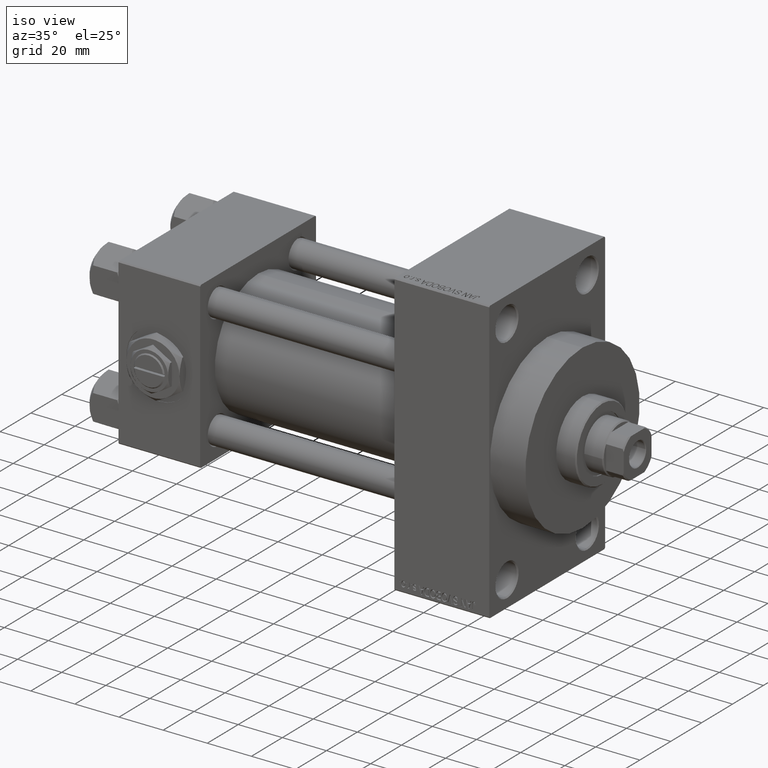
[diagram: clean part render]
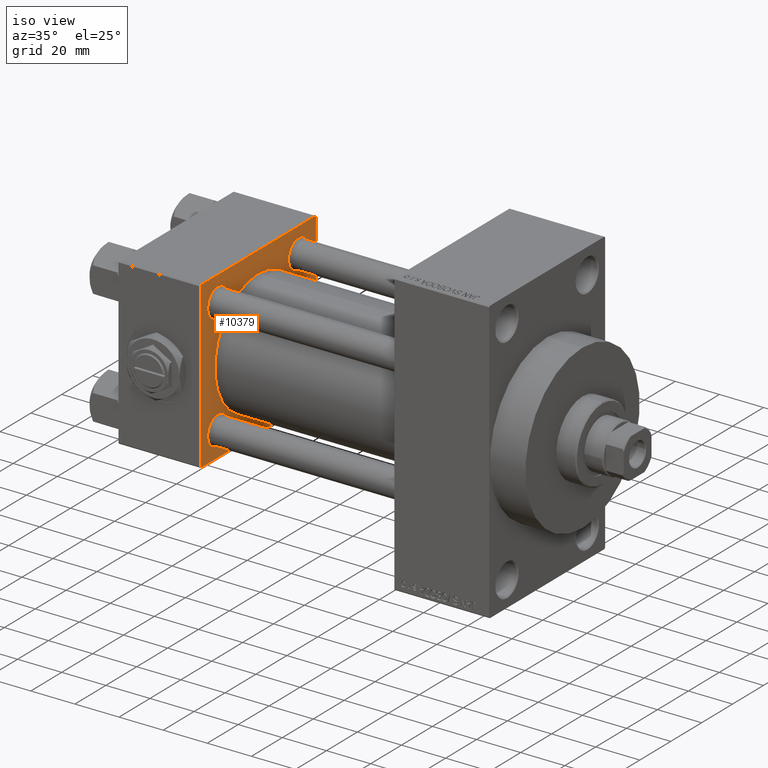
[diagram: same view with one face highlighted and labeled with its STEP entity id]
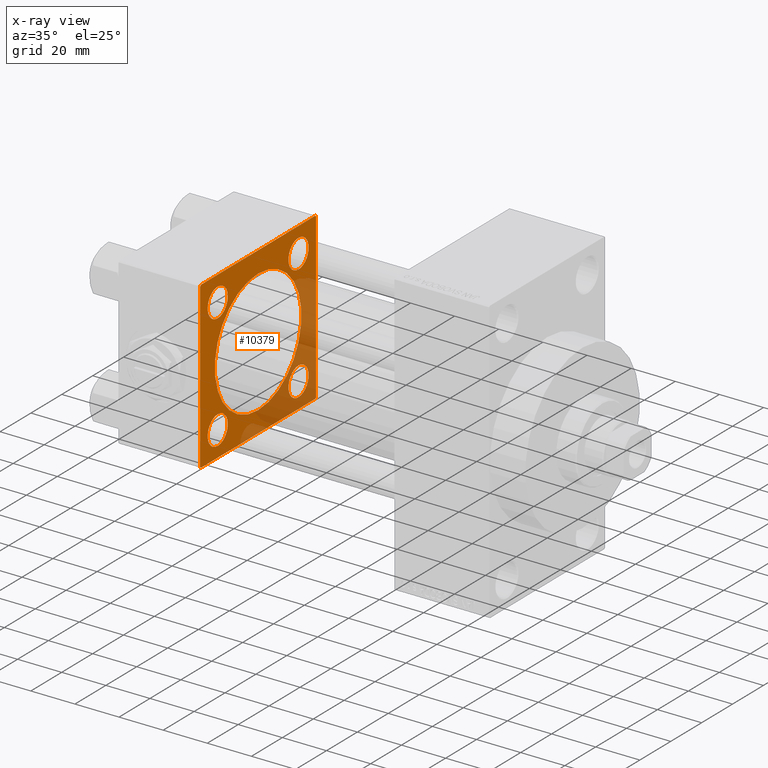
[diagram: x-ray of the same camera — body ghosted, the highlighted face saturated]
A machine part, iso view. The second image highlights one B-rep face of the part: STEP entity #10379.
The next image is the same camera in x-ray: the body ghosted, the highlighted face saturated — about 32% of this face is hidden behind the body in this view.
In plain terms, the highlighted planar face has unit normal (-1, 0, 0).
Its self-contained STEP definition (entity closure, byte-faithful):
#137 = DIRECTION ( 'NONE',  ( -1.000000000000000000, 0.000000000000000000, -0.000000000000000000 ) ) ;
#543 = DIRECTION ( 'NONE',  ( 0.000000000000000000, -1.000000000000000000, -9.251858538542971581E-17 ) ) ;
#570 = VERTEX_POINT ( 'NONE', #28455 ) ;
#608 = CIRCLE ( 'NONE', #2968, 6.499999999999981348 ) ;
#1185 = EDGE_CURVE ( 'NONE', #9830, #48133, #28582, .T. ) ;
#1370 = FACE_OUTER_BOUND ( 'NONE', #39601, .T. ) ;
#2017 = CIRCLE ( 'NONE', #29527, 28.00000000000000000 ) ;
#2146 = CARTESIAN_POINT ( 'NONE',  ( 37.00000000000000000, -37.00000000000002132, -37.50000000000000711 ) ) ;
#2225 = CARTESIAN_POINT ( 'NONE',  ( 37.00000000000000000, -26.14999999999999147, 26.15000000000000924 ) ) ;
#2282 = DIRECTION ( 'NONE',  ( 0.000000000000000000, -0.7071067811865474617, 0.7071067811865474617 ) ) ;
#2424 = ORIENTED_EDGE ( 'NONE', *, *, #24949, .T. ) ;
#2804 = VERTEX_POINT ( 'NONE', #42460 ) ;
#2968 = AXIS2_PLACEMENT_3D ( 'NONE', #6586, #21090, #36600 ) ;
#3149 = EDGE_CURVE ( 'NONE', #33008, #14816, #7200, .T. ) ;
#3944 = EDGE_CURVE ( 'NONE', #2804, #47887, #23795, .T. ) ;
#4572 = EDGE_LOOP ( 'NONE', ( #24456, #9421 ) ) ;
#5194 = CARTESIAN_POINT ( 'NONE',  ( 37.00000000000000000, -37.50000000000000711, 36.99999999999999289 ) ) ;
#5547 = FACE_BOUND ( 'NONE', #4572, .T. ) ;
#6518 = VERTEX_POINT ( 'NONE', #33891 ) ;
#6586 = CARTESIAN_POINT ( 'NONE',  ( 37.00000000000000000, -26.14999999999999147, 26.15000000000000924 ) ) ;
#6688 = CARTESIAN_POINT ( 'NONE',  ( 37.00000000000000000, 37.49999999999999289, -37.50000000000000000 ) ) ;
#6998 = DIRECTION ( 'NONE',  ( -1.000000000000000000, 0.000000000000000000, -0.000000000000000000 ) ) ;
#7200 = LINE ( 'NONE', #18757, #16810 ) ;
#7297 = ORIENTED_EDGE ( 'NONE', *, *, #1185, .F. ) ;
#7771 = VERTEX_POINT ( 'NONE', #44184 ) ;
#7860 = EDGE_CURVE ( 'NONE', #47887, #2804, #38065, .T. ) ;
#8405 = CIRCLE ( 'NONE', #36680, 6.500000000000037303 ) ;
#8963 = DIRECTION ( 'NONE',  ( 0.000000000000000000, 0.000000000000000000, 1.000000000000000000 ) ) ;
#9233 = ORIENTED_EDGE ( 'NONE', *, *, #3944, .T. ) ;
#9268 = EDGE_CURVE ( 'NONE', #20508, #22989, #42785, .T. ) ;
#9421 = ORIENTED_EDGE ( 'NONE', *, *, #11503, .F. ) ;
#9511 = EDGE_CURVE ( 'NONE', #9830, #28955, #18739, .T. ) ;
#9774 = DIRECTION ( 'NONE',  ( -1.000000000000000000, 0.000000000000000000, -0.000000000000000000 ) ) ;
#9811 = VECTOR ( 'NONE', #14810, 1000.000000000000114 ) ;
#9830 = VERTEX_POINT ( 'NONE', #12254 ) ;
#9895 = LINE ( 'NONE', #24419, #42022 ) ;
#9913 = CARTESIAN_POINT ( 'NONE',  ( 37.00000000000000000, 26.14999999999999858, 26.15000000000000213 ) ) ;
#10106 = EDGE_LOOP ( 'NONE', ( #31237, #36867 ) ) ;
#10379 = ADVANCED_FACE ( 'NONE', ( #24010, #35074, #36041, #43170, #5547, #1370 ), #16384, .F. ) ;
#10937 = VECTOR ( 'NONE', #543, 1000.000000000000000 ) ;
#11503 = EDGE_CURVE ( 'NONE', #17267, #570, #2017, .T. ) ;
#11692 = CARTESIAN_POINT ( 'NONE',  ( 37.00000000000000000, 26.14999999999999858, -19.64999999999997371 ) ) ;
#12254 = CARTESIAN_POINT ( 'NONE',  ( 37.00000000000000000, 36.99999999999997868, -37.50000000000000000 ) ) ;
#12423 = DIRECTION ( 'NONE',  ( 1.000000000000000000, -0.000000000000000000, 0.000000000000000000 ) ) ;
#12534 = CARTESIAN_POINT ( 'NONE',  ( 37.00000000000000000, -26.14999999999999147, 19.65000000000002700 ) ) ;
#12772 = ORIENTED_EDGE ( 'NONE', *, *, #3149, .T. ) ;
#13494 = EDGE_CURVE ( 'NONE', #7771, #28955, #28122, .T. ) ;
#13579 = ORIENTED_EDGE ( 'NONE', *, *, #7860, .T. ) ;
#14810 = DIRECTION ( 'NONE',  ( -0.000000000000000000, 0.7071067811865474617, 0.7071067811865474617 ) ) ;
#14816 = VERTEX_POINT ( 'NONE', #40795 ) ;
#14903 = CARTESIAN_POINT ( 'NONE',  ( 37.00000000000000000, -26.14999999999999147, -26.15000000000000924 ) ) ;
#15921 = CARTESIAN_POINT ( 'NONE',  ( 37.00000000000000711, -2.602085213965210642E-15, 0.000000000000000000 ) ) ;
#16025 = AXIS2_PLACEMENT_3D ( 'NONE', #34562, #42660, #8963 ) ;
#16384 = PLANE ( 'NONE',  #20863 ) ;
#16499 = CIRCLE ( 'NONE', #41640, 6.500000000000030198 ) ;
#16657 = EDGE_CURVE ( 'NONE', #21242, #33008, #35659, .T. ) ;
#16810 = VECTOR ( 'NONE', #18516, 1000.000000000000000 ) ;
#17267 = VERTEX_POINT ( 'NONE', #21833 ) ;
#17537 = LINE ( 'NONE', #47064, #34566 ) ;
#17830 = EDGE_CURVE ( 'NONE', #22989, #20508, #8405, .T. ) ;
#18071 = CARTESIAN_POINT ( 'NONE',  ( 37.00000000000000000, 26.14999999999999858, 26.15000000000000213 ) ) ;
#18126 = CIRCLE ( 'NONE', #40873, 6.500000000000030198 ) ;
#18516 = DIRECTION ( 'NONE',  ( 0.000000000000000000, 9.251858538542971581E-17, -1.000000000000000000 ) ) ;
#18739 = LINE ( 'NONE', #33978, #9811 ) ;
#18757 = CARTESIAN_POINT ( 'NONE',  ( 37.00000000000000000, -37.50000000000000711, 37.49999999999999289 ) ) ;
#18829 = DIRECTION ( 'NONE',  ( 0.000000000000000000, 0.000000000000000000, 1.000000000000000000 ) ) ;
#19371 = VECTOR ( 'NONE', #43352, 1000.000000000000000 ) ;
#19549 = ORIENTED_EDGE ( 'NONE', *, *, #9511, .T. ) ;
#19572 = EDGE_LOOP ( 'NONE', ( #42801, #40383 ) ) ;
#19711 = EDGE_CURVE ( 'NONE', #26812, #29090, #608, .T. ) ;
#19962 = CARTESIAN_POINT ( 'NONE',  ( 37.00000000000000000, 37.49999999999999289, 37.50000000000000000 ) ) ;
#20254 = CARTESIAN_POINT ( 'NONE',  ( 37.00000000000000000, -37.00000000000000711, 37.49999999999999289 ) ) ;
#20312 = DIRECTION ( 'NONE',  ( -1.000000000000000000, 0.000000000000000000, -0.000000000000000000 ) ) ;
#20485 = CARTESIAN_POINT ( 'NONE',  ( 37.00000000000000000, 37.49999999999999289, 37.50000000000000000 ) ) ;
#20508 = VERTEX_POINT ( 'NONE', #41797 ) ;
#20863 = AXIS2_PLACEMENT_3D ( 'NONE', #47111, #42937, #35552 ) ;
#21090 = DIRECTION ( 'NONE',  ( -1.000000000000000000, 0.000000000000000000, -0.000000000000000000 ) ) ;
#21242 = VERTEX_POINT ( 'NONE', #20254 ) ;
#21582 = AXIS2_PLACEMENT_3D ( 'NONE', #18071, #6998, #22234 ) ;
#21688 = VERTEX_POINT ( 'NONE', #22382 ) ;
#21833 = CARTESIAN_POINT ( 'NONE',  ( 37.00000000000000711, 8.269258236473784371E-16, -28.00000000000000000 ) ) ;
#21865 = CARTESIAN_POINT ( 'NONE',  ( 37.00000000000000000, -26.14999999999999147, -19.65000000000003411 ) ) ;
#22234 = DIRECTION ( 'NONE',  ( 0.000000000000000000, 0.000000000000000000, 1.000000000000000000 ) ) ;
#22264 = ORIENTED_EDGE ( 'NONE', *, *, #16657, .T. ) ;
#22272 = EDGE_CURVE ( 'NONE', #21688, #21242, #27112, .T. ) ;
#22382 = CARTESIAN_POINT ( 'NONE',  ( 37.00000000000000000, 36.99999999999999289, 37.50000000000000000 ) ) ;
#22989 = VERTEX_POINT ( 'NONE', #47813 ) ;
#23036 = VECTOR ( 'NONE', #43831, 1000.000000000000000 ) ;
#23795 = CIRCLE ( 'NONE', #26165, 6.499999999999974243 ) ;
#24010 = FACE_BOUND ( 'NONE', #43955, .T. ) ;
#24419 = CARTESIAN_POINT ( 'NONE',  ( 37.00000000000000000, -37.00000000000002132, -37.50000000000000711 ) ) ;
#24456 = ORIENTED_EDGE ( 'NONE', *, *, #24664, .F. ) ;
#24664 = EDGE_CURVE ( 'NONE', #570, #17267, #38496, .T. ) ;
#24788 = DIRECTION ( 'NONE',  ( 0.000000000000000000, 0.000000000000000000, 1.000000000000000000 ) ) ;
#24923 = DIRECTION ( 'NONE',  ( 0.000000000000000000, 0.000000000000000000, 1.000000000000000000 ) ) ;
#24949 = EDGE_CURVE ( 'NONE', #7771, #21688, #17537, .T. ) ;
#25873 = ORIENTED_EDGE ( 'NONE', *, *, #13494, .F. ) ;
#26165 = AXIS2_PLACEMENT_3D ( 'NONE', #14903, #137, #18829 ) ;
#26812 = VERTEX_POINT ( 'NONE', #35854 ) ;
#27112 = LINE ( 'NONE', #19962, #10937 ) ;
#27459 = CARTESIAN_POINT ( 'NONE',  ( 37.00000000000000000, 26.14999999999999858, -26.15000000000000213 ) ) ;
#28122 = LINE ( 'NONE', #20485, #19371 ) ;
#28455 = CARTESIAN_POINT ( 'NONE',  ( 37.00000000000000711, -2.602085213965210642E-15, 28.00000000000000000 ) ) ;
#28582 = LINE ( 'NONE', #6688, #23036 ) ;
#28827 = CARTESIAN_POINT ( 'NONE',  ( 37.00000000000000000, 37.49999999999999289, -36.99999999999998579 ) ) ;
#28955 = VERTEX_POINT ( 'NONE', #28827 ) ;
#29090 = VERTEX_POINT ( 'NONE', #12534 ) ;
#29472 = ORIENTED_EDGE ( 'NONE', *, *, #19711, .T. ) ;
#29527 = AXIS2_PLACEMENT_3D ( 'NONE', #30877, #12423, #42196 ) ;
#30681 = CIRCLE ( 'NONE', #39319, 6.499999999999981348 ) ;
#30877 = CARTESIAN_POINT ( 'NONE',  ( 37.00000000000000711, -2.602085213965210642E-15, 0.000000000000000000 ) ) ;
#30927 = DIRECTION ( 'NONE',  ( 0.000000000000000000, 0.000000000000000000, 1.000000000000000000 ) ) ;
#31237 = ORIENTED_EDGE ( 'NONE', *, *, #9268, .T. ) ;
#31259 = EDGE_CURVE ( 'NONE', #44756, #6518, #16499, .T. ) ;
#31439 = AXIS2_PLACEMENT_3D ( 'NONE', #15921, #42003, #30927 ) ;
#32235 = EDGE_CURVE ( 'NONE', #29090, #26812, #30681, .T. ) ;
#32300 = DIRECTION ( 'NONE',  ( -1.000000000000000000, 0.000000000000000000, -0.000000000000000000 ) ) ;
#32346 = ORIENTED_EDGE ( 'NONE', *, *, #22272, .T. ) ;
#32397 = EDGE_CURVE ( 'NONE', #6518, #44756, #18126, .T. ) ;
#32703 = CARTESIAN_POINT ( 'NONE',  ( 37.00000000000000000, -37.50000000000000711, 36.99999999999999289 ) ) ;
#33008 = VERTEX_POINT ( 'NONE', #5194 ) ;
#33891 = CARTESIAN_POINT ( 'NONE',  ( 37.00000000000000000, 26.14999999999999858, -32.65000000000003411 ) ) ;
#33978 = CARTESIAN_POINT ( 'NONE',  ( 37.00000000000000000, 37.49999999999999289, -36.99999999999998579 ) ) ;
#34562 = CARTESIAN_POINT ( 'NONE',  ( 37.00000000000000000, -26.14999999999999147, -26.15000000000000924 ) ) ;
#34566 = VECTOR ( 'NONE', #2282, 1000.000000000000114 ) ;
#35074 = FACE_BOUND ( 'NONE', #19572, .T. ) ;
#35199 = DIRECTION ( 'NONE',  ( -1.000000000000000000, 0.000000000000000000, -0.000000000000000000 ) ) ;
#35552 = DIRECTION ( 'NONE',  ( -0.000000000000000000, 0.000000000000000000, 1.000000000000000000 ) ) ;
#35659 = LINE ( 'NONE', #32703, #39101 ) ;
#35854 = CARTESIAN_POINT ( 'NONE',  ( 37.00000000000000000, -26.14999999999999147, 32.64999999999999147 ) ) ;
#36041 = FACE_BOUND ( 'NONE', #48605, .T. ) ;
#36147 = DIRECTION ( 'NONE',  ( -0.000000000000000000, -0.7071067811865474617, -0.7071067811865474617 ) ) ;
#36600 = DIRECTION ( 'NONE',  ( 0.000000000000000000, 0.000000000000000000, 1.000000000000000000 ) ) ;
#36680 = AXIS2_PLACEMENT_3D ( 'NONE', #9913, #32300, #24923 ) ;
#36867 = ORIENTED_EDGE ( 'NONE', *, *, #17830, .T. ) ;
#38065 = CIRCLE ( 'NONE', #16025, 6.499999999999974243 ) ;
#38496 = CIRCLE ( 'NONE', #31439, 28.00000000000000000 ) ;
#39101 = VECTOR ( 'NONE', #36147, 1000.000000000000114 ) ;
#39319 = AXIS2_PLACEMENT_3D ( 'NONE', #2225, #35199, #43059 ) ;
#39601 = EDGE_LOOP ( 'NONE', ( #7297, #19549, #25873, #2424, #32346, #22264, #12772, #41726 ) ) ;
#40383 = ORIENTED_EDGE ( 'NONE', *, *, #31259, .T. ) ;
#40795 = CARTESIAN_POINT ( 'NONE',  ( 37.00000000000000000, -37.50000000000000000, -37.00000000000003553 ) ) ;
#40873 = AXIS2_PLACEMENT_3D ( 'NONE', #27459, #20312, #42217 ) ;
#41640 = AXIS2_PLACEMENT_3D ( 'NONE', #43470, #9774, #24788 ) ;
#41726 = ORIENTED_EDGE ( 'NONE', *, *, #42331, .T. ) ;
#41797 = CARTESIAN_POINT ( 'NONE',  ( 37.00000000000000000, 26.14999999999999858, 19.64999999999997016 ) ) ;
#42003 = DIRECTION ( 'NONE',  ( 1.000000000000000000, -0.000000000000000000, 0.000000000000000000 ) ) ;
#42022 = VECTOR ( 'NONE', #42868, 1000.000000000000000 ) ;
#42196 = DIRECTION ( 'NONE',  ( 0.000000000000000000, 0.000000000000000000, 1.000000000000000000 ) ) ;
#42217 = DIRECTION ( 'NONE',  ( 0.000000000000000000, 0.000000000000000000, 1.000000000000000000 ) ) ;
#42331 = EDGE_CURVE ( 'NONE', #14816, #48133, #9895, .T. ) ;
#42460 = CARTESIAN_POINT ( 'NONE',  ( 37.00000000000000000, -26.14999999999999147, -32.64999999999998437 ) ) ;
#42660 = DIRECTION ( 'NONE',  ( -1.000000000000000000, 0.000000000000000000, -0.000000000000000000 ) ) ;
#42785 = CIRCLE ( 'NONE', #21582, 6.500000000000037303 ) ;
#42801 = ORIENTED_EDGE ( 'NONE', *, *, #32397, .T. ) ;
#42868 = DIRECTION ( 'NONE',  ( 0.000000000000000000, 0.7071067811865524577, -0.7071067811865426878 ) ) ;
#42937 = DIRECTION ( 'NONE',  ( -1.000000000000000000, 0.000000000000000000, -0.000000000000000000 ) ) ;
#43059 = DIRECTION ( 'NONE',  ( 0.000000000000000000, 0.000000000000000000, 1.000000000000000000 ) ) ;
#43170 = FACE_BOUND ( 'NONE', #10106, .T. ) ;
#43352 = DIRECTION ( 'NONE',  ( 0.000000000000000000, 0.000000000000000000, -1.000000000000000000 ) ) ;
#43470 = CARTESIAN_POINT ( 'NONE',  ( 37.00000000000000000, 26.14999999999999858, -26.15000000000000213 ) ) ;
#43831 = DIRECTION ( 'NONE',  ( 0.000000000000000000, -1.000000000000000000, -9.251858538542972814E-17 ) ) ;
#43955 = EDGE_LOOP ( 'NONE', ( #9233, #13579 ) ) ;
#44184 = CARTESIAN_POINT ( 'NONE',  ( 37.00000000000000000, 37.49999999999999289, 37.00000000000000000 ) ) ;
#44756 = VERTEX_POINT ( 'NONE', #11692 ) ;
#47064 = CARTESIAN_POINT ( 'NONE',  ( 37.00000000000000000, 36.99999999999999289, 37.50000000000000000 ) ) ;
#47111 = CARTESIAN_POINT ( 'NONE',  ( 37.00000000000000000, 0.000000000000000000, 0.000000000000000000 ) ) ;
#47813 = CARTESIAN_POINT ( 'NONE',  ( 37.00000000000000000, 26.14999999999999858, 32.65000000000004121 ) ) ;
#47887 = VERTEX_POINT ( 'NONE', #21865 ) ;
#48133 = VERTEX_POINT ( 'NONE', #2146 ) ;
#48605 = EDGE_LOOP ( 'NONE', ( #48634, #29472 ) ) ;
#48634 = ORIENTED_EDGE ( 'NONE', *, *, #32235, .T. ) ;